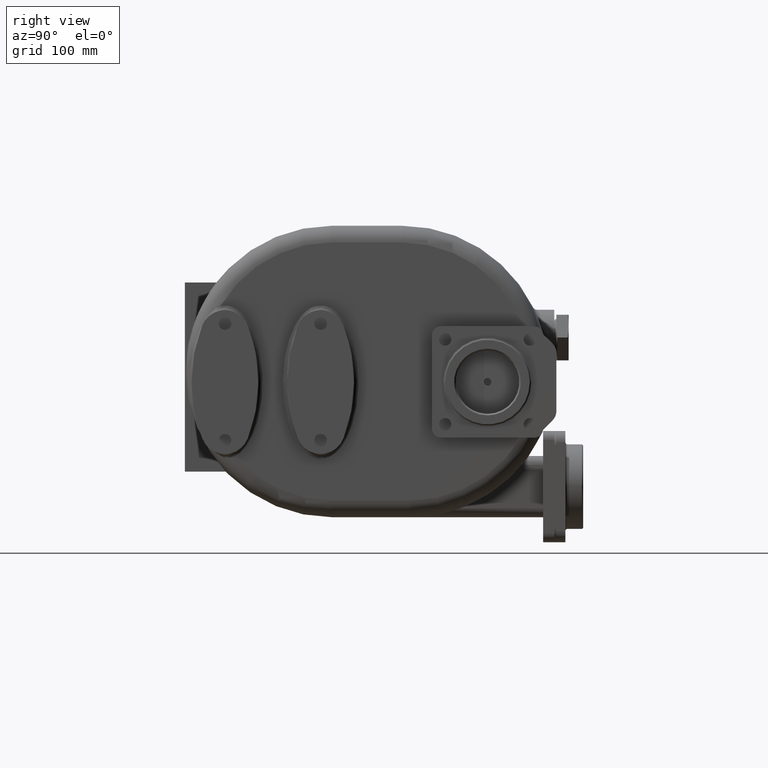
[diagram: clean part render]
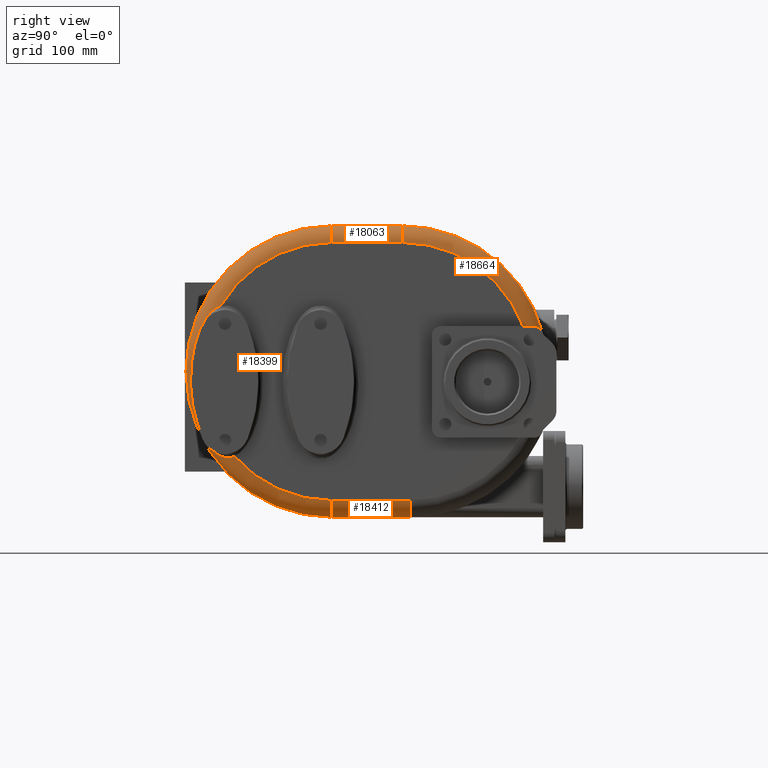
[diagram: same view with one multi-face feature highlighted, each face labeled with its STEP entity id]
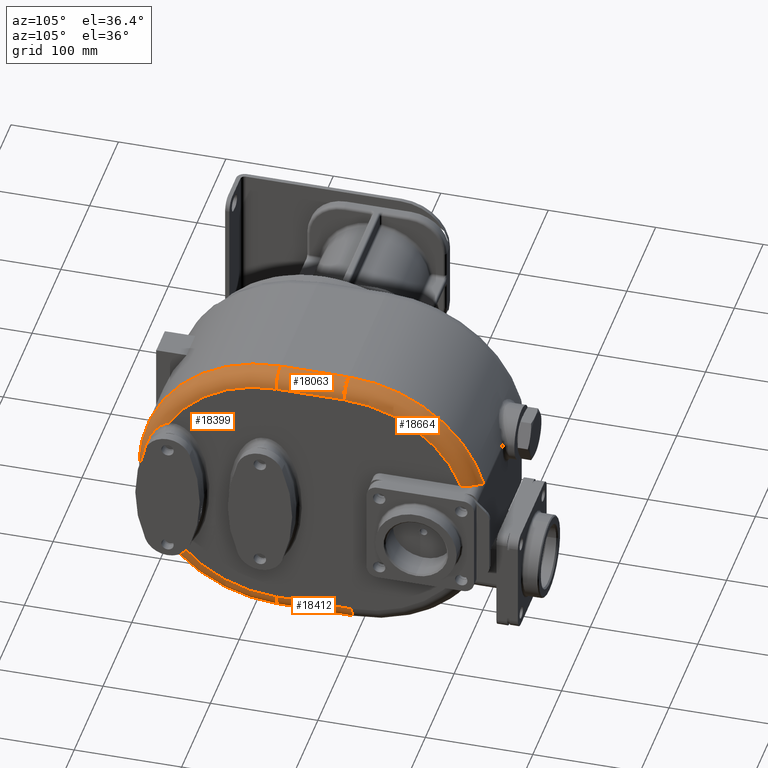
[diagram: same view with one multi-face feature highlighted, each face labeled with its STEP entity id]
A machine part, right view. The highlighted faces form ONE feature: a constant-radius fillet chain: 4 tangent blend faces with common blend radius 15 mm. The faces share edges in the B-rep.
A second angle (auxiliary view) of the same feature is appended — it is thin or edge-on in the first view.
Their STEP definitions:
[1] entity #18664 (Torus):
#2729=CARTESIAN_POINT('',(7.6E1,1.953713778214E2,0.E0));
#2730=DIRECTION('',(1.E0,0.E0,0.E0));
#2731=DIRECTION('',(0.E0,9.644603429157E-1,2.642276422764E-1));
#2732=AXIS2_PLACEMENT_3D('',#2729,#2730,#2731);
#3990=CARTESIAN_POINT('',(7.6E1,1.953713778214E2,1.16E2));
#3991=DIRECTION('',(0.E0,-1.E0,0.E0));
#3992=DIRECTION('',(1.E0,0.E0,0.E0));
#3993=AXIS2_PLACEMENT_3D('',#3990,#3991,#3992);
#4015=CARTESIAN_POINT('',(9.1E1,1.953713778214E2,0.E0));
#4016=DIRECTION('',(1.E0,0.E0,0.E0));
#4017=DIRECTION('',(0.E0,9.370713447294E-1,3.491379310345E-1));
#4018=AXIS2_PLACEMENT_3D('',#4015,#4016,#4017);
#4755=CARTESIAN_POINT('',(7.6E1,3.217156827433E2,3.461382113821E1));
#4756=CARTESIAN_POINT('',(7.619519228477E1,3.216768119546E2,3.475570384935E1));
#4757=CARTESIAN_POINT('',(7.658508197822E1,3.215913487932E2,3.503696708574E1));
#4758=CARTESIAN_POINT('',(7.716866587543E1,3.214401723647E2,3.545100900562E1));
#4759=CARTESIAN_POINT('',(7.774880337336E1,3.212668632771E2,3.585514410909E1));
#4760=CARTESIAN_POINT('',(7.832435170424E1,3.210721559104E2,3.624812267130E1));
#4761=CARTESIAN_POINT('',(7.889311266989E1,3.208572943203E2,3.662804066962E1));
#4762=CARTESIAN_POINT('',(7.945426083589E1,3.206231817063E2,3.699399255125E1));
#4763=CARTESIAN_POINT('',(8.000583162190E1,3.203713024973E2,3.734439256725E1));
#4764=CARTESIAN_POINT('',(8.054696187359E1,3.201028178012E2,3.767845385440E1));
#4765=CARTESIAN_POINT('',(8.107642730279E1,3.198191285942E2,3.799521999054E1));
#4766=CARTESIAN_POINT('',(8.159283046536E1,3.195218880601E2,3.829373623602E1));
#4767=CARTESIAN_POINT('',(8.209585040422E1,3.192122101184E2,3.857374189860E1));
#4768=CARTESIAN_POINT('',(8.258402856708E1,3.188919751921E2,3.883441184847E1));
#4769=CARTESIAN_POINT('',(8.305711498555E1,3.185624007368E2,3.907567444783E1));
#4770=CARTESIAN_POINT('',(8.351460443878E1,3.182248731940E2,3.929735931091E1));
#4771=CARTESIAN_POINT('',(8.395564815813E1,3.178811282294E2,3.949922626444E1));
#4772=CARTESIAN_POINT('',(8.438058320030E1,3.175320123548E2,3.968163926007E1));
#4773=CARTESIAN_POINT('',(8.478881226258E1,3.171791130930E2,3.984458162813E1));
#4774=CARTESIAN_POINT('',(8.518013358937E1,3.168237715947E2,3.998830095495E1));
#4775=CARTESIAN_POINT('',(8.555508838085E1,3.164666213512E2,4.011333332953E1));
#4776=CARTESIAN_POINT('',(8.591332807032E1,3.161091120559E2,4.021993244951E1));
#4777=CARTESIAN_POINT('',(8.625513066658E1,3.157521249902E2,4.030862205260E1));
#4778=CARTESIAN_POINT('',(8.658113650225E1,3.153960832303E2,4.037999203259E1));
#4779=CARTESIAN_POINT('',(8.689114173628E1,3.150423087212E2,4.043446377795E1));
#4780=CARTESIAN_POINT('',(8.718585575612E1,3.146910980047E2,4.047266931988E1));
#4781=CARTESIAN_POINT('',(8.746564731806E1,3.143430566629E2,4.049514243709E1));
#4782=CARTESIAN_POINT('',(8.764226683136E1,3.141138048484E2,4.05E1));
#4783=CARTESIAN_POINT('',(8.772814306464E1,3.14E2,4.05E1));
#4785=CARTESIAN_POINT('',(8.772814306464E1,3.14E2,4.05E1));
#4786=CARTESIAN_POINT('',(8.784249081249E1,3.138484641487E2,4.05E1));
#4787=CARTESIAN_POINT('',(8.806602936446E1,3.135407719804E2,4.05E1));
#4788=CARTESIAN_POINT('',(8.838599206117E1,3.130649497776E2,4.05E1));
#4789=CARTESIAN_POINT('',(8.868978307586E1,3.125757721023E2,4.05E1));
#4790=CARTESIAN_POINT('',(8.897704836133E1,3.120735154145E2,4.05E1));
#4791=CARTESIAN_POINT('',(8.924709946115E1,3.115590739103E2,4.05E1));
#4792=CARTESIAN_POINT('',(8.949964139600E1,3.110326572179E2,4.05E1));
#4793=CARTESIAN_POINT('',(8.973393239573E1,3.104954729996E2,4.05E1));
#4794=CARTESIAN_POINT('',(8.994978338463E1,3.099475717806E2,4.05E1));
#4795=CARTESIAN_POINT('',(9.014649029704E1,3.093903428123E2,4.05E1));
#4796=CARTESIAN_POINT('',(9.032387982631E1,3.088238625021E2,4.05E1));
#4797=CARTESIAN_POINT('',(9.048137550935E1,3.082494761422E2,4.05E1));
#4798=CARTESIAN_POINT('',(9.061872691815E1,3.076676755282E2,4.05E1));
#4799=CARTESIAN_POINT('',(9.073558974809E1,3.070792973691E2,4.05E1));
#4800=CARTESIAN_POINT('',(9.083162801588E1,3.064855457481E2,4.05E1));
#4801=CARTESIAN_POINT('',(9.090667635E1,3.058866918953E2,4.05E1));
#4802=CARTESIAN_POINT('',(9.096042939933E1,3.052844717468E2,4.05E1));
#4803=CARTESIAN_POINT('',(9.099279507131E1,3.046789581334E2,4.05E1));
#4804=CARTESIAN_POINT('',(9.1E1,3.042743177475E2,4.05E1));
#4805=CARTESIAN_POINT('',(9.1E1,3.040716538100E2,4.05E1));
#11883=CARTESIAN_POINT('',(9.1E1,1.953713778214E2,1.16E2));
#11885=VERTEX_POINT('',#11883);
#11887=CARTESIAN_POINT('',(7.6E1,1.953713778214E2,1.31E2));
#11888=VERTEX_POINT('',#11887);
#11889=CARTESIAN_POINT('',(9.1E1,3.040716538100E2,4.05E1));
#11890=VERTEX_POINT('',#11889);
#11891=CARTESIAN_POINT('',(7.6E1,3.217156827433E2,3.461382113821E1));
#11892=VERTEX_POINT('',#11891);
#11893=VERTEX_POINT('',#4783);
#18652=CARTESIAN_POINT('',(7.6E1,1.953713778214E2,0.E0));
#18653=DIRECTION('',(-1.E0,0.E0,0.E0));
#18654=DIRECTION('',(0.E0,9.664017526969E-1,2.570362861239E-1));
#18655=AXIS2_PLACEMENT_3D('',#18652,#18653,#18654);
#18656=TOROIDAL_SURFACE('',#18655,1.16E2,1.5E1);
#18657=ORIENTED_EDGE('',*,*,#18074,.T.);
#18658=ORIENTED_EDGE('',*,*,#18059,.T.);
#18659=ORIENTED_EDGE('',*,*,#16492,.F.);
#18660=ORIENTED_EDGE('',*,*,#18642,.T.);
#18661=ORIENTED_EDGE('',*,*,#18567,.T.);
#18662=EDGE_LOOP('',(#18657,#18658,#18659,#18660,#18661));
#18663=FACE_OUTER_BOUND('',#18662,.F.);
#18664=ADVANCED_FACE('',(#18663),#18656,.T.);
#2733=CIRCLE('',#2732,1.31E2);
#3994=CIRCLE('',#3993,1.5E1);
#4019=CIRCLE('',#4018,1.16E2);
#4784=B_SPLINE_CURVE_WITH_KNOTS('',3,(#4755,#4756,#4757,#4758,#4759,#4760,#4761,
#4762,#4763,#4764,#4765,#4766,#4767,#4768,#4769,#4770,#4771,#4772,#4773,#4774,
#4775,#4776,#4777,#4778,#4779,#4780,#4781,#4782,#4783),.UNSPECIFIED.,.F.,.F.,(4,
1,1,1,1,1,1,1,1,1,1,1,1,1,1,1,1,1,1,1,1,1,1,1,1,1,4),(0.E0,3.846153846154E-2,
7.692307692308E-2,1.153846153846E-1,1.538461538462E-1,1.923076923077E-1,
2.307692307692E-1,2.692307692308E-1,3.076923076923E-1,3.461538461538E-1,
3.846153846154E-1,4.230769230769E-1,4.615384615385E-1,5.E-1,5.384615384615E-1,
5.769230769231E-1,6.153846153846E-1,6.538461538462E-1,6.923076923077E-1,
7.307692307692E-1,7.692307692308E-1,8.076923076923E-1,8.461538461538E-1,
8.846153846154E-1,9.230769230769E-1,9.615384615385E-1,1.E0),.UNSPECIFIED.);
#4806=B_SPLINE_CURVE_WITH_KNOTS('',3,(#4785,#4786,#4787,#4788,#4789,#4790,#4791,
#4792,#4793,#4794,#4795,#4796,#4797,#4798,#4799,#4800,#4801,#4802,#4803,#4804,
#4805),.UNSPECIFIED.,.F.,.F.,(4,1,1,1,1,1,1,1,1,1,1,1,1,1,1,1,1,1,4),(0.E0,
5.555555555556E-2,1.111111111111E-1,1.666666666667E-1,2.222222222222E-1,
2.777777777778E-1,3.333333333333E-1,3.888888888889E-1,4.444444444444E-1,5.E-1,
5.555555555556E-1,6.111111111111E-1,6.666666666667E-1,7.222222222222E-1,
7.777777777778E-1,8.333333333333E-1,8.888888888889E-1,9.444444444444E-1,1.E0),
.UNSPECIFIED.);
#16492=EDGE_CURVE('',#11892,#11888,#2733,.T.);
#18059=EDGE_CURVE('',#11885,#11888,#3994,.T.);
#18074=EDGE_CURVE('',#11890,#11885,#4019,.T.);
#18567=EDGE_CURVE('',#11893,#11890,#4806,.T.);
#18642=EDGE_CURVE('',#11892,#11893,#4784,.T.);
[2] entity #18063 (Cylinder):
#3982=DIRECTION('',(0.E0,-1.E0,0.E0));
#3983=VECTOR('',#3982,6.337137782133E1);
#3984=CARTESIAN_POINT('',(7.6E1,1.953713778214E2,1.31E2));
#3985=LINE('',#3984,#3983);
#3990=CARTESIAN_POINT('',(7.6E1,1.953713778214E2,1.16E2));
#3991=DIRECTION('',(0.E0,-1.E0,0.E0));
#3992=DIRECTION('',(1.E0,0.E0,0.E0));
#3993=AXIS2_PLACEMENT_3D('',#3990,#3991,#3992);
#4011=DIRECTION('',(0.E0,-1.E0,0.E0));
#4012=VECTOR('',#4011,6.337137782137E1);
#4013=CARTESIAN_POINT('',(9.1E1,1.953713778214E2,1.16E2));
#4014=LINE('',#4013,#4012);
#4403=CARTESIAN_POINT('',(7.6E1,1.32E2,1.16E2));
#4404=DIRECTION('',(0.E0,-1.E0,0.E0));
#4405=DIRECTION('',(1.E0,0.E0,0.E0));
#4406=AXIS2_PLACEMENT_3D('',#4403,#4404,#4405);
#11881=CARTESIAN_POINT('',(7.6E1,1.32E2,1.31E2));
#11882=VERTEX_POINT('',#11881);
#11883=CARTESIAN_POINT('',(9.1E1,1.953713778214E2,1.16E2));
#11884=CARTESIAN_POINT('',(9.1E1,1.32E2,1.16E2));
#11885=VERTEX_POINT('',#11883);
#11886=VERTEX_POINT('',#11884);
#11887=CARTESIAN_POINT('',(7.6E1,1.953713778214E2,1.31E2));
#11888=VERTEX_POINT('',#11887);
#18049=CARTESIAN_POINT('',(7.6E1,1.963471733505E2,1.16E2));
#18050=DIRECTION('',(0.E0,-1.E0,0.E0));
#18051=DIRECTION('',(1.E0,0.E0,0.E0));
#18052=AXIS2_PLACEMENT_3D('',#18049,#18050,#18051);
#18053=CYLINDRICAL_SURFACE('',#18052,1.5E1);
#18055=ORIENTED_EDGE('',*,*,#18054,.T.);
#18057=ORIENTED_EDGE('',*,*,#18056,.T.);
#18058=ORIENTED_EDGE('',*,*,#18043,.F.);
#18060=ORIENTED_EDGE('',*,*,#18059,.F.);
#18061=EDGE_LOOP('',(#18055,#18057,#18058,#18060));
#18062=FACE_OUTER_BOUND('',#18061,.F.);
#18063=ADVANCED_FACE('',(#18062),#18053,.T.);
#3994=CIRCLE('',#3993,1.5E1);
#4407=CIRCLE('',#4406,1.5E1);
#18043=EDGE_CURVE('',#11888,#11882,#3985,.T.);
#18054=EDGE_CURVE('',#11885,#11886,#4014,.T.);
#18056=EDGE_CURVE('',#11886,#11882,#4407,.T.);
#18059=EDGE_CURVE('',#11885,#11888,#3994,.T.);
[3] entity #18399 (Torus):
#3951=CARTESIAN_POINT('',(7.6E1,1.32E2,0.E0));
#3952=DIRECTION('',(1.E0,0.E0,0.E0));
#3953=DIRECTION('',(0.E0,0.E0,1.E0));
#3954=AXIS2_PLACEMENT_3D('',#3951,#3952,#3953);
#4004=CARTESIAN_POINT('',(9.100004992876E1,3.217760166446E1,5.908881446780E1));
#4006=CARTESIAN_POINT('',(9.1E1,1.32E2,0.E0));
#4007=DIRECTION('',(1.E0,0.E0,0.E0));
#4008=DIRECTION('',(0.E0,0.E0,1.E0));
#4009=AXIS2_PLACEMENT_3D('',#4006,#4007,#4008);
#4029=CARTESIAN_POINT('',(9.1E1,1.32E2,0.E0));
#4030=DIRECTION('',(1.E0,0.E0,0.E0));
#4031=DIRECTION('',(0.E0,-7.528766622300E-1,-6.581616302015E-1));
#4032=AXIS2_PLACEMENT_3D('',#4029,#4030,#4031);
#4034=CARTESIAN_POINT('',(9.099992128087E1,4.466630732680E1,-7.634674873565E1));
#4383=CARTESIAN_POINT('',(8.960221230007E1,3.730528943384E1,-7.743265395225E1));
#4384=CARTESIAN_POINT('',(8.966119599261E1,3.748556784864E1,-7.745264553512E1));
#4385=CARTESIAN_POINT('',(8.977533445812E1,3.784224499369E1,-7.748566188618E1));
#4386=CARTESIAN_POINT('',(8.993455277509E1,3.836493352687E1,-7.751599683760E1));
#4387=CARTESIAN_POINT('',(9.008217771221E1,3.887600892426E1,-7.752800602744E1));
#4388=CARTESIAN_POINT('',(9.021837890166E1,3.937597276208E1,-7.752270656139E1));
#4389=CARTESIAN_POINT('',(9.034340210510E1,3.986548667420E1,-7.750088415271E1));
#4390=CARTESIAN_POINT('',(9.045749398186E1,4.034536609313E1,-7.746311872458E1));
#4391=CARTESIAN_POINT('',(9.056068217088E1,4.081589216043E1,-7.741022537309E1));
#4392=CARTESIAN_POINT('',(9.065295360741E1,4.127709290725E1,-7.734298641365E1));
#4393=CARTESIAN_POINT('',(9.073434113459E1,4.172910677813E1,-7.726206389177E1));
#4394=CARTESIAN_POINT('',(9.080489762293E1,4.217216921682E1,-7.716800531527E1));
#4395=CARTESIAN_POINT('',(9.086466919207E1,4.260653141057E1,-7.706127625219E1));
#4396=CARTESIAN_POINT('',(9.091370518389E1,4.303258956510E1,-7.694213014077E1));
#4397=CARTESIAN_POINT('',(9.095202409292E1,4.345106014225E1,-7.681101094544E1));
#4398=CARTESIAN_POINT('',(9.097955356195E1,4.386260079560E1,-7.666829607234E1));
#4399=CARTESIAN_POINT('',(9.099628691714E1,4.426769310846E1,-7.651407762407E1));
#4400=CARTESIAN_POINT('',(9.099990210030E1,4.453413928416E1,-7.640381428165E1));
#4401=CARTESIAN_POINT('',(9.099992128087E1,4.466630732680E1,-7.634674873565E1));
#4403=CARTESIAN_POINT('',(7.6E1,1.32E2,1.16E2));
#4404=DIRECTION('',(0.E0,-1.E0,0.E0));
#4405=DIRECTION('',(1.E0,0.E0,0.E0));
#4406=AXIS2_PLACEMENT_3D('',#4403,#4404,#4405);
#4408=CARTESIAN_POINT('',(9.100004992876E1,3.217760166446E1,5.908881446780E1));
#4409=CARTESIAN_POINT('',(9.100007636805E1,3.199936441872E1,5.902756214247E1));
#4410=CARTESIAN_POINT('',(9.099698553052E1,3.163982287209E1,5.889667820385E1));
#4411=CARTESIAN_POINT('',(9.098376567845E1,3.109136716694E1,5.867782186462E1));
#4412=CARTESIAN_POINT('',(9.096183605163E1,3.053288448122E1,5.843314148002E1));
#4413=CARTESIAN_POINT('',(9.093138001698E1,2.996373313162E1,5.816136472743E1));
#4414=CARTESIAN_POINT('',(9.089252014908E1,2.938357979888E1,5.786040406304E1));
#4415=CARTESIAN_POINT('',(9.084537131029E1,2.879184317567E1,5.752845195890E1));
#4416=CARTESIAN_POINT('',(9.079004685188E1,2.818800045239E1,5.716336947492E1));
#4417=CARTESIAN_POINT('',(9.072664354114E1,2.757133933061E1,5.676272932788E1));
#4418=CARTESIAN_POINT('',(9.065526179572E1,2.694123289484E1,5.632390058336E1));
#4419=CARTESIAN_POINT('',(9.057614157993E1,2.629813139456E1,5.584481774212E1));
#4420=CARTESIAN_POINT('',(9.048972866945E1,2.564364635198E1,5.532431861169E1));
#4421=CARTESIAN_POINT('',(9.039652274217E1,2.497893415924E1,5.476075655893E1));
#4422=CARTESIAN_POINT('',(9.029689532617E1,2.430396923094E1,5.415151027709E1));
#4423=CARTESIAN_POINT('',(9.019126451242E1,2.361901405585E1,5.349412269044E1));
#4424=CARTESIAN_POINT('',(9.008009609437E1,2.292451436921E1,5.278618405103E1));
#4425=CARTESIAN_POINT('',(8.996395083572E1,2.222103203733E1,5.202493073344E1));
#4426=CARTESIAN_POINT('',(8.984340028139E1,2.150926643247E1,5.120783882075E1));
#4427=CARTESIAN_POINT('',(8.971902518425E1,2.079005043897E1,5.033254529406E1));
#4428=CARTESIAN_POINT('',(8.959151370096E1,2.006431422641E1,4.939621843854E1));
#4429=CARTESIAN_POINT('',(8.946148264607E1,1.933301482188E1,4.839632911164E1));
#4430=CARTESIAN_POINT('',(8.932962413104E1,1.859729915611E1,4.733016008625E1));
#4431=CARTESIAN_POINT('',(8.919657294292E1,1.785814871090E1,4.619460272109E1));
#4432=CARTESIAN_POINT('',(8.906290807489E1,1.711670062706E1,4.498673899574E1));
#4433=CARTESIAN_POINT('',(8.892929822133E1,1.637438154261E1,4.370343938799E1));
#4434=CARTESIAN_POINT('',(8.879626014646E1,1.563269088149E1,4.234192771654E1));
#4435=CARTESIAN_POINT('',(8.866437332139E1,1.489340462806E1,4.089919940222E1));
#4436=CARTESIAN_POINT('',(8.853404368806E1,1.415835875385E1,3.937248554217E1));
#4437=CARTESIAN_POINT('',(8.840568192989E1,1.342974431234E1,3.775915773161E1));
#4438=CARTESIAN_POINT('',(8.827955039291E1,1.270991295150E1,3.605686737136E1));
#4439=CARTESIAN_POINT('',(8.815580713702E1,1.200150422566E1,3.426367637203E1));
#4440=CARTESIAN_POINT('',(8.803451067742E1,1.130745796645E1,3.237812287469E1));
#4441=CARTESIAN_POINT('',(8.791551607745E1,1.063088939619E1,3.039934629506E1));
#4442=CARTESIAN_POINT('',(8.779858958586E1,9.975292856679E0,2.832740127578E1));
#4443=CARTESIAN_POINT('',(8.768328973302E1,9.344264251508E0,2.616302257175E1));
#4444=CARTESIAN_POINT('',(8.756901142669E1,8.741625494295E0,2.390817649814E1));
#4445=CARTESIAN_POINT('',(8.745503977606E1,8.171316457510E0,2.156571994254E1));
#4446=CARTESIAN_POINT('',(8.734041095985E1,7.637196772144E0,1.913972249549E1));
#4447=CARTESIAN_POINT('',(8.722417582007E1,7.143218730566E0,1.663535643675E1));
#4448=CARTESIAN_POINT('',(8.710510691631E1,6.692946407838E0,1.405871169313E1));
#4449=CARTESIAN_POINT('',(8.698210103972E1,6.289921616115E0,1.141693712942E1));
#4450=CARTESIAN_POINT('',(8.685381063122E1,5.937094030613E0,8.717805090750E0));
#4451=CARTESIAN_POINT('',(8.671910493686E1,5.637246278661E0,5.969765487312E0));
#4452=CARTESIAN_POINT('',(8.657667135485E1,5.392467110781E0,3.181733353026E0));
#4453=CARTESIAN_POINT('',(8.642547877545E1,5.204564031128E0,3.625121461631E-1));
#4454=CARTESIAN_POINT('',(8.626440440758E1,5.074672468762E0,-2.478950905761E0));
#4455=CARTESIAN_POINT('',(8.609258923710E1,5.003584198303E0,-5.333861008222E0));
#4456=CARTESIAN_POINT('',(8.590928381386E1,4.991582913455E0,-8.193504169599E0));
#4457=CARTESIAN_POINT('',(8.571392868197E1,5.038517600153E0,-1.104942843467E1));
#4458=CARTESIAN_POINT('',(8.550618328658E1,5.143890695131E0,-1.389396742673E1));
#4459=CARTESIAN_POINT('',(8.528591189428E1,5.306830254542E0,-1.671970308565E1));
#4460=CARTESIAN_POINT('',(8.505322508726E1,5.526246597174E0,-1.952027002536E1));
#4461=CARTESIAN_POINT('',(8.480851865363E1,5.800824988736E0,-2.228966868784E1));
#4462=CARTESIAN_POINT('',(8.455245293639E1,6.129092025728E0,-2.502268420185E1));
#4463=CARTESIAN_POINT('',(8.428610206359E1,6.509503483262E0,-2.771457590879E1));
#4464=CARTESIAN_POINT('',(8.401093025708E1,6.940367828112E0,-3.036085270430E1));
#4465=CARTESIAN_POINT('',(8.372895665335E1,7.419827171209E0,-3.295689198882E1));
#4466=CARTESIAN_POINT('',(8.344297158895E1,7.945646792480E0,-3.549702089297E1));
#4467=CARTESIAN_POINT('',(8.315680419749E1,8.514719204449E0,-3.797312861860E1));
#4468=CARTESIAN_POINT('',(8.287529834010E1,9.122605742110E0,-4.037432678308E1));
#4469=CARTESIAN_POINT('',(8.260516545070E1,9.762096959887E0,-4.268274364434E1));
#4470=CARTESIAN_POINT('',(8.235371721921E1,1.042366106871E1,-4.487859390559E1));
#4471=CARTESIAN_POINT('',(8.212879357618E1,1.109395866995E1,-4.693672090352E1));
#4472=CARTESIAN_POINT('',(8.193629532111E1,1.176151855348E1,-4.884382173378E1));
#4473=CARTESIAN_POINT('',(8.177947704243E1,1.241492445083E1,-5.059109671683E1));
#4474=CARTESIAN_POINT('',(8.165877515772E1,1.304992576391E1,-5.218876882868E1));
#4475=CARTESIAN_POINT('',(8.157249104970E1,1.366459310073E1,-5.365088691133E1));
#4476=CARTESIAN_POINT('',(8.151836964067E1,1.426042951886E1,-5.499601623E1));
#4477=CARTESIAN_POINT('',(8.149389895703E1,1.484115242833E1,-5.624409904492E1));
#4478=CARTESIAN_POINT('',(8.149678980841E1,1.540999209498E1,-5.741087152800E1));
#4479=CARTESIAN_POINT('',(8.152538645776E1,1.597138318310E1,-5.851172657525E1));
#4480=CARTESIAN_POINT('',(8.157841561467E1,1.652938842763E1,-5.955907445826E1));
#4481=CARTESIAN_POINT('',(8.165460879582E1,1.708685816079E1,-6.056160515986E1));
#4482=CARTESIAN_POINT('',(8.175379088139E1,1.764808399557E1,-6.152871038098E1));
#4483=CARTESIAN_POINT('',(8.187518750121E1,1.821517638723E1,-6.246524090572E1));
#4484=CARTESIAN_POINT('',(8.201831305747E1,1.879058416702E1,-6.337580074625E1));
#4485=CARTESIAN_POINT('',(8.218321216974E1,1.937686021444E1,-6.426404250334E1));
#4486=CARTESIAN_POINT('',(8.236898297762E1,1.997468851970E1,-6.513067987347E1));
#4487=CARTESIAN_POINT('',(8.257506904976E1,2.058539469806E1,-6.597692572130E1));
#4488=CARTESIAN_POINT('',(8.280063936660E1,2.120935853198E1,-6.680231039275E1));
#4489=CARTESIAN_POINT('',(8.304419111343E1,2.184588942775E1,-6.760512398938E1));
#4490=CARTESIAN_POINT('',(8.330428743450E1,2.249456119772E1,-6.838403703343E1));
#4491=CARTESIAN_POINT('',(8.357903148266E1,2.315400700423E1,-6.913673809326E1));
#4492=CARTESIAN_POINT('',(8.386631584092E1,2.382261293538E1,-6.986097805959E1));
#4493=CARTESIAN_POINT('',(8.416390406545E1,2.449864819059E1,-7.055476109066E1));
#4494=CARTESIAN_POINT('',(8.446958804149E1,2.518031616486E1,-7.121629351452E1));
#4495=CARTESIAN_POINT('',(8.478104773282E1,2.586559940078E1,-7.184396057734E1));
#4496=CARTESIAN_POINT('',(8.509604607384E1,2.655263593098E1,-7.243670430052E1));
#4497=CARTESIAN_POINT('',(8.541263719199E1,2.723984950528E1,-7.299388956697E1));
#4498=CARTESIAN_POINT('',(8.572879685755E1,2.792540663508E1,-7.351499446104E1));
#4499=CARTESIAN_POINT('',(8.604273659005E1,2.860780796271E1,-7.400004911787E1));
#4500=CARTESIAN_POINT('',(8.635302013444E1,2.928592989437E1,-7.444940440470E1));
#4501=CARTESIAN_POINT('',(8.665821229915E1,2.995852057843E1,-7.486351476718E1));
#4502=CARTESIAN_POINT('',(8.695702873435E1,3.062445933393E1,-7.524307499616E1));
#4503=CARTESIAN_POINT('',(8.724834844355E1,3.128267992209E1,-7.558884912061E1));
#4504=CARTESIAN_POINT('',(8.753110573001E1,3.193206404960E1,-7.590170774968E1));
#4505=CARTESIAN_POINT('',(8.780439476127E1,3.257166358542E1,-7.618273588602E1));
#4506=CARTESIAN_POINT('',(8.806772108883E1,3.320112841914E1,-7.643316616457E1));
#4507=CARTESIAN_POINT('',(8.832063069555E1,3.382012580347E1,-7.665425945596E1));
#4508=CARTESIAN_POINT('',(8.856276886834E1,3.442844288494E1,-7.684730988446E1));
#4509=CARTESIAN_POINT('',(8.879387884129E1,3.502601865311E1,-7.701364167627E1));
#4510=CARTESIAN_POINT('',(8.901376203351E1,3.561278269415E1,-7.715446083904E1));
#4511=CARTESIAN_POINT('',(8.922217495731E1,3.618857535885E1,-7.727105456298E1));
#4512=CARTESIAN_POINT('',(8.941900322598E1,3.675331203326E1,-7.736451299167E1));
#4513=CARTESIAN_POINT('',(8.954244871164E1,3.712256389905E1,-7.741231658876E1));
#4514=CARTESIAN_POINT('',(8.960221230007E1,3.730528943384E1,-7.743265395225E1));
#4516=CARTESIAN_POINT('',(7.6E1,1.32E2,-1.16E2));
#4517=DIRECTION('',(0.E0,1.E0,0.E0));
#4518=DIRECTION('',(1.E0,0.E0,0.E0));
#4519=AXIS2_PLACEMENT_3D('',#4516,#4517,#4518);
#11877=CARTESIAN_POINT('',(9.1E1,1.32E2,-1.16E2));
#11878=VERTEX_POINT('',#11877);
#11879=CARTESIAN_POINT('',(7.6E1,1.32E2,-1.31E2));
#11880=VERTEX_POINT('',#11879);
#11881=CARTESIAN_POINT('',(7.6E1,1.32E2,1.31E2));
#11882=VERTEX_POINT('',#11881);
#11884=CARTESIAN_POINT('',(9.1E1,1.32E2,1.16E2));
#11886=VERTEX_POINT('',#11884);
#11938=VERTEX_POINT('',#4004);
#11940=VERTEX_POINT('',#4034);
#11942=VERTEX_POINT('',#4383);
#18383=CARTESIAN_POINT('',(7.6E1,1.32E2,0.E0));
#18384=DIRECTION('',(-1.E0,0.E0,0.E0));
#18385=DIRECTION('',(0.E0,7.448751950117E-3,9.999722576624E-1));
#18386=AXIS2_PLACEMENT_3D('',#18383,#18384,#18385);
#18387=TOROIDAL_SURFACE('',#18386,1.16E2,1.5E1);
#18388=ORIENTED_EDGE('',*,*,#18373,.T.);
#18389=ORIENTED_EDGE('',*,*,#18090,.T.);
#18391=ORIENTED_EDGE('',*,*,#18390,.T.);
#18392=ORIENTED_EDGE('',*,*,#18020,.F.);
#18393=ORIENTED_EDGE('',*,*,#18056,.F.);
#18394=ORIENTED_EDGE('',*,*,#18071,.T.);
#18396=ORIENTED_EDGE('',*,*,#18395,.T.);
#18397=EDGE_LOOP('',(#18388,#18389,#18391,#18392,#18393,#18394,#18396));
#18398=FACE_OUTER_BOUND('',#18397,.F.);
#18399=ADVANCED_FACE('',(#18398),#18387,.T.);
#3955=CIRCLE('',#3954,1.31E2);
#4010=CIRCLE('',#4009,1.16E2);
#4033=CIRCLE('',#4032,1.16E2);
#4402=B_SPLINE_CURVE_WITH_KNOTS('',3,(#4383,#4384,#4385,#4386,#4387,#4388,#4389,
#4390,#4391,#4392,#4393,#4394,#4395,#4396,#4397,#4398,#4399,#4400,#4401),
.UNSPECIFIED.,.F.,.F.,(4,1,1,1,1,1,1,1,1,1,1,1,1,1,1,1,4),(0.E0,6.25E-2,1.25E-1,
1.875E-1,2.5E-1,3.125E-1,3.75E-1,4.375E-1,5.E-1,5.625E-1,6.25E-1,6.875E-1,
7.5E-1,8.125E-1,8.75E-1,9.375E-1,1.E0),.UNSPECIFIED.);
#4407=CIRCLE('',#4406,1.5E1);
#4515=B_SPLINE_CURVE_WITH_KNOTS('',3,(#4408,#4409,#4410,#4411,#4412,#4413,#4414,
#4415,#4416,#4417,#4418,#4419,#4420,#4421,#4422,#4423,#4424,#4425,#4426,#4427,
#4428,#4429,#4430,#4431,#4432,#4433,#4434,#4435,#4436,#4437,#4438,#4439,#4440,
#4441,#4442,#4443,#4444,#4445,#4446,#4447,#4448,#4449,#4450,#4451,#4452,#4453,
#4454,#4455,#4456,#4457,#4458,#4459,#4460,#4461,#4462,#4463,#4464,#4465,#4466,
#4467,#4468,#4469,#4470,#4471,#4472,#4473,#4474,#4475,#4476,#4477,#4478,#4479,
#4480,#4481,#4482,#4483,#4484,#4485,#4486,#4487,#4488,#4489,#4490,#4491,#4492,
#4493,#4494,#4495,#4496,#4497,#4498,#4499,#4500,#4501,#4502,#4503,#4504,#4505,
#4506,#4507,#4508,#4509,#4510,#4511,#4512,#4513,#4514),.UNSPECIFIED.,.F.,.F.,(4,
1,1,1,1,1,1,1,1,1,1,1,1,1,1,1,1,1,1,1,1,1,1,1,1,1,1,1,1,1,1,1,1,1,1,1,1,1,1,1,1,
1,1,1,1,1,1,1,1,1,1,1,1,1,1,1,1,1,1,1,1,1,1,1,1,1,1,1,1,1,1,1,1,1,1,1,1,1,1,1,1,
1,1,1,1,1,1,1,1,1,1,1,1,1,1,1,1,1,1,1,1,1,1,1,4),(0.E0,9.615384615385E-3,
1.923076923077E-2,2.884615384615E-2,3.846153846154E-2,4.807692307692E-2,
5.769230769231E-2,6.730769230769E-2,7.692307692308E-2,8.653846153846E-2,
9.615384615385E-2,1.057692307692E-1,1.153846153846E-1,1.25E-1,1.346153846154E-1,
1.442307692308E-1,1.538461538462E-1,1.634615384615E-1,1.730769230769E-1,
1.826923076923E-1,1.923076923077E-1,2.019230769231E-1,2.115384615385E-1,
2.211538461538E-1,2.307692307692E-1,2.403846153846E-1,2.5E-1,2.596153846154E-1,
2.692307692308E-1,2.788461538462E-1,2.884615384615E-1,2.980769230769E-1,
3.076923076923E-1,3.173076923077E-1,3.269230769231E-1,3.365384615385E-1,
3.461538461538E-1,3.557692307692E-1,3.653846153846E-1,3.75E-1,3.846153846154E-1,
3.942307692308E-1,4.038461538462E-1,4.134615384615E-1,4.230769230769E-1,
4.326923076923E-1,4.423076923077E-1,4.519230769231E-1,4.615384615385E-1,
4.711538461538E-1,4.807692307692E-1,4.903846153846E-1,5.E-1,5.096153846154E-1,
5.192307692308E-1,5.288461538462E-1,5.384615384615E-1,5.480769230769E-1,
5.576923076923E-1,5.673076923077E-1,5.769230769231E-1,5.865384615385E-1,
5.961538461538E-1,6.057692307692E-1,6.153846153846E-1,6.25E-1,6.346153846154E-1,
6.442307692308E-1,6.538461538462E-1,6.634615384615E-1,6.730769230769E-1,
6.826923076923E-1,6.923076923077E-1,7.019230769231E-1,7.115384615385E-1,
7.211538461538E-1,7.307692307692E-1,7.403846153846E-1,7.5E-1,7.596153846154E-1,
7.692307692308E-1,7.788461538462E-1,7.884615384615E-1,7.980769230769E-1,
8.076923076923E-1,8.173076923077E-1,8.269230769231E-1,8.365384615385E-1,
8.461538461538E-1,8.557692307692E-1,8.653846153846E-1,8.75E-1,8.846153846154E-1,
8.942307692308E-1,9.038461538462E-1,9.134615384615E-1,9.230769230769E-1,
9.326923076923E-1,9.423076923077E-1,9.519230769231E-1,9.615384615385E-1,
9.711538461538E-1,9.807692307692E-1,9.903846153846E-1,1.E0),.UNSPECIFIED.);
#4520=CIRCLE('',#4519,1.5E1);
#18020=EDGE_CURVE('',#11882,#11880,#3955,.T.);
#18056=EDGE_CURVE('',#11886,#11882,#4407,.T.);
#18071=EDGE_CURVE('',#11886,#11938,#4010,.T.);
#18090=EDGE_CURVE('',#11940,#11878,#4033,.T.);
#18373=EDGE_CURVE('',#11942,#11940,#4402,.T.);
#18390=EDGE_CURVE('',#11878,#11880,#4520,.T.);
#18395=EDGE_CURVE('',#11938,#11942,#4515,.T.);
[4] entity #18412 (Cylinder):
#3193=DIRECTION('',(0.E0,1.E0,0.E0));
#3194=VECTOR('',#3193,7.030062667996E1);
#3195=CARTESIAN_POINT('',(7.6E1,1.32E2,-1.31E2));
#3196=LINE('',#3195,#3194);
#4025=DIRECTION('',(0.E0,1.E0,0.E0));
#4026=VECTOR('',#4025,7.030062668036E1);
#4027=CARTESIAN_POINT('',(9.1E1,1.32E2,-1.16E2));
#4028=LINE('',#4027,#4026);
#4516=CARTESIAN_POINT('',(7.6E1,1.32E2,-1.16E2));
#4517=DIRECTION('',(0.E0,1.E0,0.E0));
#4518=DIRECTION('',(1.E0,0.E0,0.E0));
#4519=AXIS2_PLACEMENT_3D('',#4516,#4517,#4518);
#4521=CARTESIAN_POINT('',(7.6E1,2.023006266804E2,-1.16E2));
#4522=DIRECTION('',(0.E0,1.E0,0.E0));
#4523=DIRECTION('',(1.E0,0.E0,0.E0));
#4524=AXIS2_PLACEMENT_3D('',#4521,#4522,#4523);
#11869=CARTESIAN_POINT('',(7.6E1,2.023006266804E2,-1.31E2));
#11871=VERTEX_POINT('',#11869);
#11873=CARTESIAN_POINT('',(9.1E1,2.023006266804E2,-1.16E2));
#11875=VERTEX_POINT('',#11873);
#11877=CARTESIAN_POINT('',(9.1E1,1.32E2,-1.16E2));
#11878=VERTEX_POINT('',#11877);
#11879=CARTESIAN_POINT('',(7.6E1,1.32E2,-1.31E2));
#11880=VERTEX_POINT('',#11879);
#18400=CARTESIAN_POINT('',(7.6E1,1.310242044709E2,-1.16E2));
#18401=DIRECTION('',(0.E0,1.E0,0.E0));
#18402=DIRECTION('',(1.E0,0.E0,0.E0));
#18403=AXIS2_PLACEMENT_3D('',#18400,#18401,#18402);
#18404=CYLINDRICAL_SURFACE('',#18403,1.5E1);
#18405=ORIENTED_EDGE('',*,*,#18088,.T.);
#18407=ORIENTED_EDGE('',*,*,#18406,.T.);
#18408=ORIENTED_EDGE('',*,*,#16947,.F.);
#18409=ORIENTED_EDGE('',*,*,#18390,.F.);
#18410=EDGE_LOOP('',(#18405,#18407,#18408,#18409));
#18411=FACE_OUTER_BOUND('',#18410,.F.);
#18412=ADVANCED_FACE('',(#18411),#18404,.T.);
#4520=CIRCLE('',#4519,1.5E1);
#4525=CIRCLE('',#4524,1.5E1);
#16947=EDGE_CURVE('',#11880,#11871,#3196,.T.);
#18088=EDGE_CURVE('',#11878,#11875,#4028,.T.);
#18390=EDGE_CURVE('',#11878,#11880,#4520,.T.);
#18406=EDGE_CURVE('',#11875,#11871,#4525,.T.);